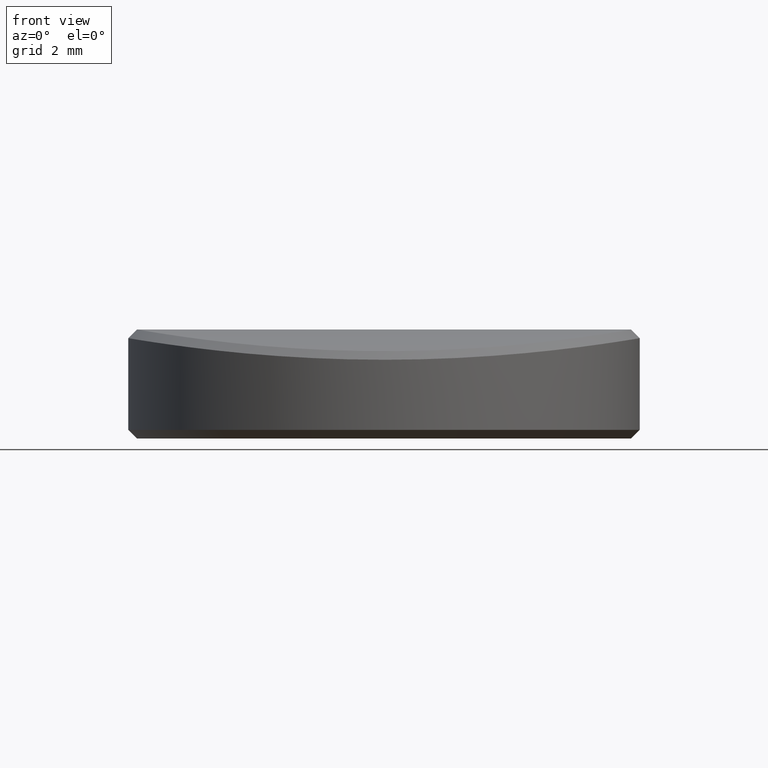
[diagram: clean part render]
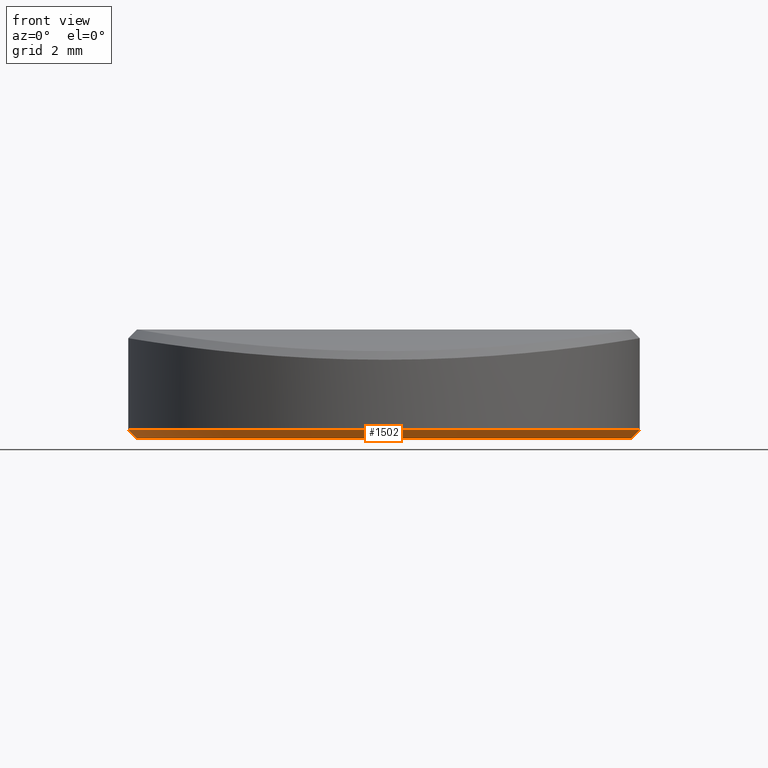
[diagram: same view with one face highlighted and labeled with its STEP entity id]
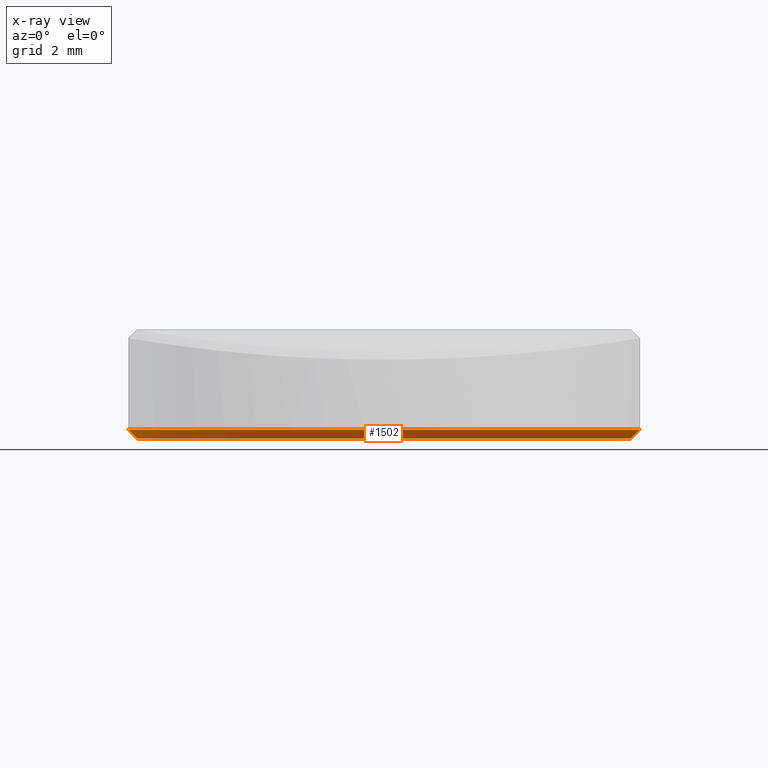
[diagram: x-ray of the same camera — body ghosted, the highlighted face saturated]
A machine part, front view. The second image highlights one B-rep face of the part: STEP entity #1502.
The next image is the same camera in x-ray: the body ghosted, the highlighted face saturated — about 0% of this face is hidden behind the body in this view.
In plain terms, the highlighted conical surface has half-angle 45 deg.
Its self-contained STEP definition (entity closure, byte-faithful):
#71 = CARTESIAN_POINT ( 'NONE',  ( -5.849999999999999645, 0.000000000000000000, 0.2000000000000005107 ) ) ;
#179 = CARTESIAN_POINT ( 'NONE',  ( 0.000000000000000000, 0.000000000000000000, 0.2000000000000005107 ) ) ;
#217 = DIRECTION ( 'NONE',  ( -0.000000000000000000, -0.000000000000000000, 1.000000000000000000 ) ) ;
#263 = DIRECTION ( 'NONE',  ( -0.7071067811865489050, 8.659560562354951347E-17, 0.7071067811865460184 ) ) ;
#272 = AXIS2_PLACEMENT_3D ( 'NONE', #179, #217, #1500 ) ;
#348 = EDGE_LOOP ( 'NONE', ( #809, #1510, #471, #712 ) ) ;
#387 = VERTEX_POINT ( 'NONE', #1217 ) ;
#408 = CIRCLE ( 'NONE', #1847, 5.849999999999999645 ) ;
#417 = DIRECTION ( 'NONE',  ( -0.000000000000000000, -0.000000000000000000, -1.000000000000000000 ) ) ;
#471 = ORIENTED_EDGE ( 'NONE', *, *, #1568, .T. ) ;
#489 = EDGE_CURVE ( 'NONE', #387, #836, #578, .T. ) ;
#506 = VERTEX_POINT ( 'NONE', #71 ) ;
#512 = LINE ( 'NONE', #686, #1164 ) ;
#578 = CIRCLE ( 'NONE', #791, 5.649999999999997691 ) ;
#686 = CARTESIAN_POINT ( 'NONE',  ( 5.849999999999999645, 0.000000000000000000, 0.2000000000000005107 ) ) ;
#712 = ORIENTED_EDGE ( 'NONE', *, *, #1879, .F. ) ;
#791 = AXIS2_PLACEMENT_3D ( 'NONE', #909, #417, #2015 ) ;
#809 = ORIENTED_EDGE ( 'NONE', *, *, #1341, .F. ) ;
#836 = VERTEX_POINT ( 'NONE', #1083 ) ;
#909 = CARTESIAN_POINT ( 'NONE',  ( 0.000000000000000000, 0.000000000000000000, 0.000000000000000000 ) ) ;
#1083 = CARTESIAN_POINT ( 'NONE',  ( -5.649999999999997691, 7.041719095097278907E-16, 0.000000000000000000 ) ) ;
#1147 = LINE ( 'NONE', #1745, #1335 ) ;
#1164 = VECTOR ( 'NONE', #2035, 1000.000000000000114 ) ;
#1217 = CARTESIAN_POINT ( 'NONE',  ( 5.649999999999997691, 0.000000000000000000, 0.000000000000000000 ) ) ;
#1335 = VECTOR ( 'NONE', #263, 1000.000000000000114 ) ;
#1337 = CARTESIAN_POINT ( 'NONE',  ( 5.849999999999999645, 7.164183775012015436E-16, 0.2000000000000005107 ) ) ;
#1341 = EDGE_CURVE ( 'NONE', #836, #506, #1147, .T. ) ;
#1479 = VERTEX_POINT ( 'NONE', #1337 ) ;
#1500 = DIRECTION ( 'NONE',  ( 1.000000000000000000, 0.000000000000000000, 0.000000000000000000 ) ) ;
#1502 = ADVANCED_FACE ( 'NONE', ( #1840 ), #1580, .T. ) ;
#1510 = ORIENTED_EDGE ( 'NONE', *, *, #489, .F. ) ;
#1568 = EDGE_CURVE ( 'NONE', #387, #1479, #512, .T. ) ;
#1580 = CONICAL_SURFACE ( 'NONE', #272, 5.849999999999999645, 0.7853981633974503884 ) ;
#1618 = DIRECTION ( 'NONE',  ( 1.000000000000000000, 0.000000000000000000, 0.000000000000000000 ) ) ;
#1745 = CARTESIAN_POINT ( 'NONE',  ( -5.849999999999999645, 7.164183775012015436E-16, 0.2000000000000005107 ) ) ;
#1748 = DIRECTION ( 'NONE',  ( -0.000000000000000000, -0.000000000000000000, 1.000000000000000000 ) ) ;
#1840 = FACE_OUTER_BOUND ( 'NONE', #348, .T. ) ;
#1847 = AXIS2_PLACEMENT_3D ( 'NONE', #1905, #1748, #1618 ) ;
#1879 = EDGE_CURVE ( 'NONE', #506, #1479, #408, .T. ) ;
#1905 = CARTESIAN_POINT ( 'NONE',  ( 0.000000000000000000, 0.000000000000000000, 0.2000000000000005107 ) ) ;
#2015 = DIRECTION ( 'NONE',  ( 1.000000000000000000, 0.000000000000000000, 0.000000000000000000 ) ) ;
#2035 = DIRECTION ( 'NONE',  ( 0.7071067811865489050, 0.000000000000000000, 0.7071067811865460184 ) ) ;